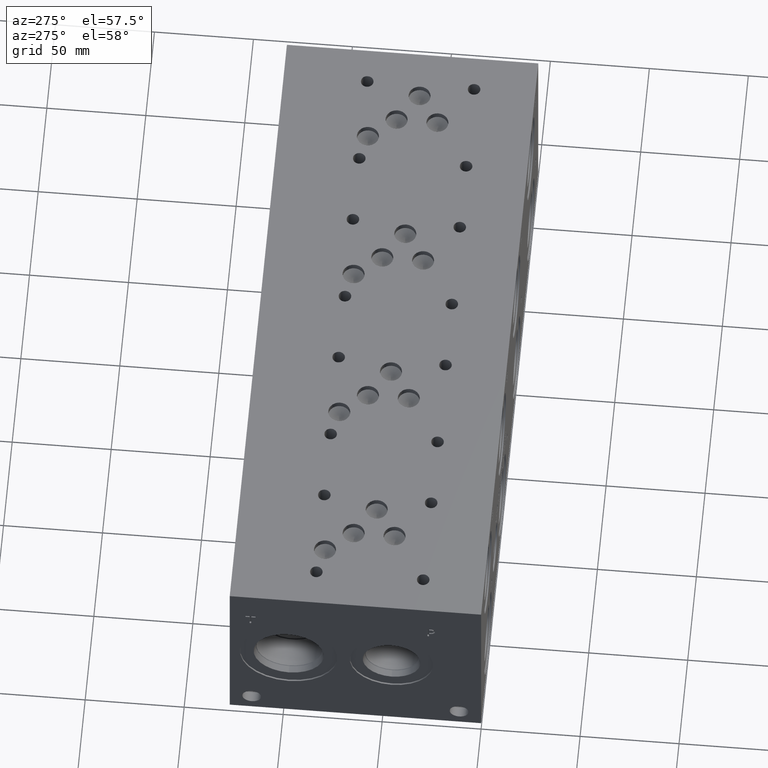
[diagram: clean part render]
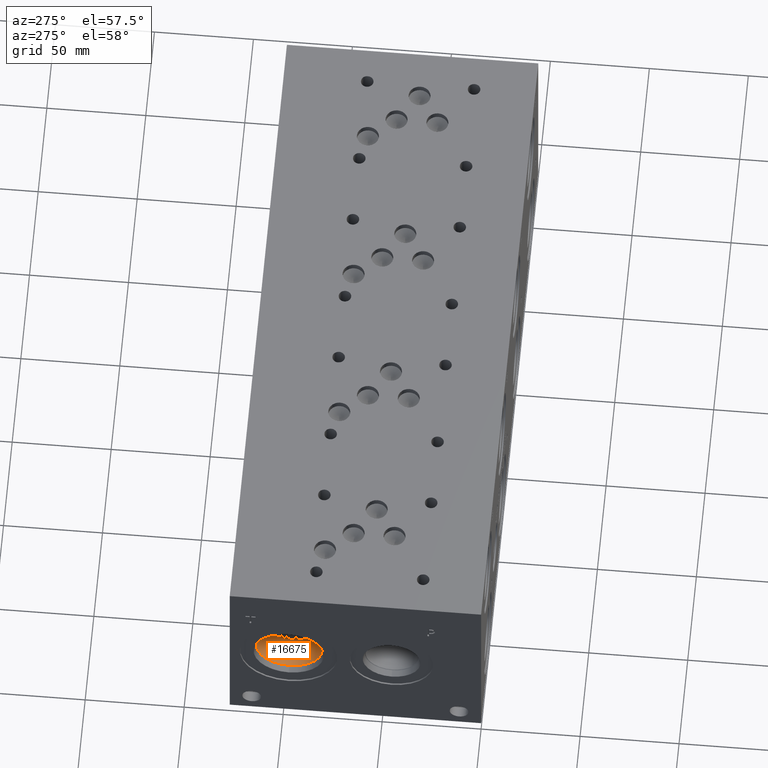
[diagram: same view with one face highlighted and labeled with its STEP entity id]
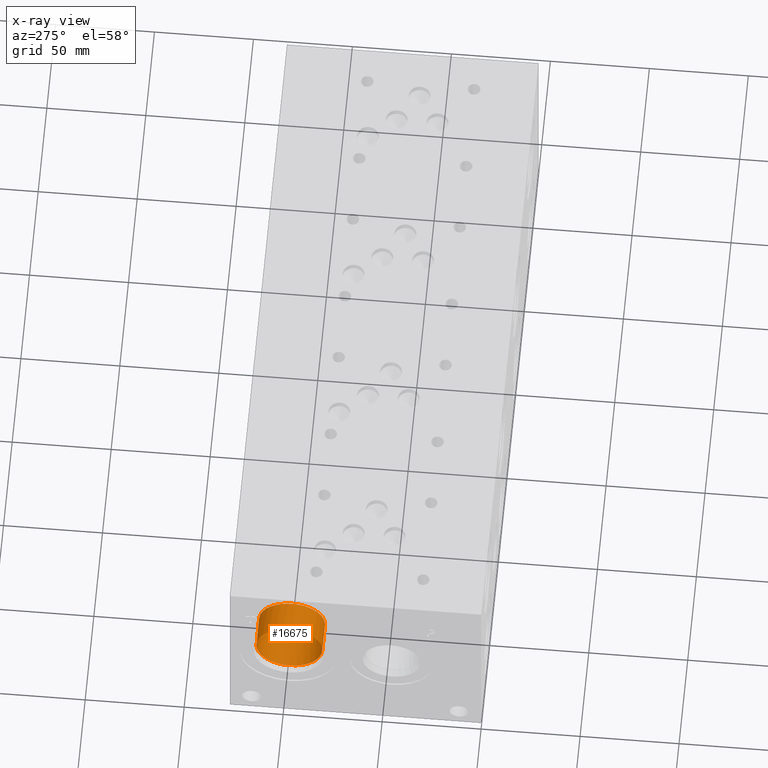
[diagram: x-ray of the same camera — body ghosted, the highlighted face saturated]
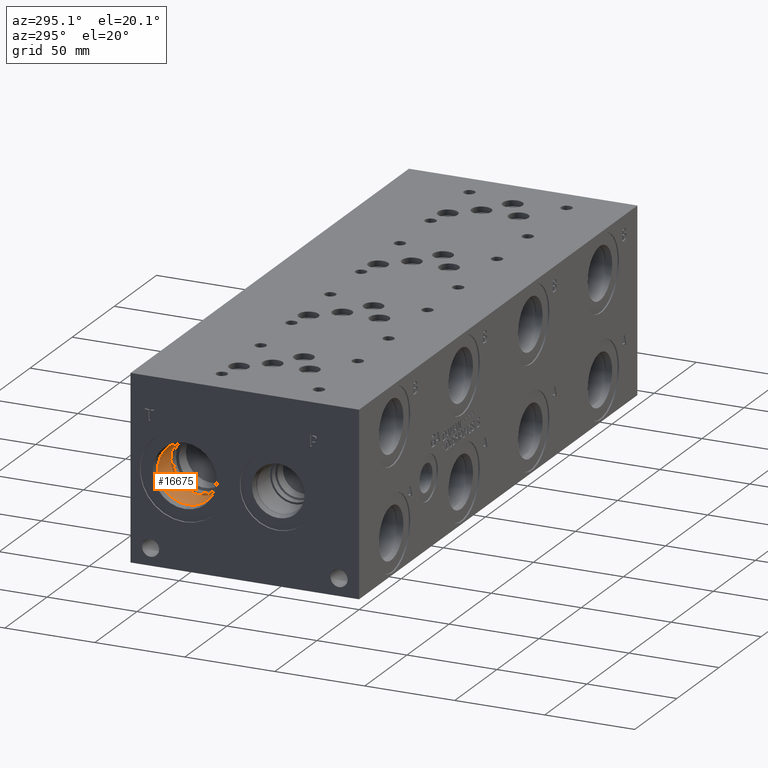
[diagram: same view with one face highlighted and labeled with its STEP entity id]
A machine part, auxiliary view. The second image highlights one B-rep face of the part: STEP entity #16675.
The next image is the same camera in x-ray: the body ghosted, the highlighted face saturated — about 0% of this face is hidden behind the body in this view.
A second angle (auxiliary view) of the same face is appended — the face is thin or edge-on in the first view.
In plain terms, the highlighted cylindrical surface (bore or boss wall) has radius 16.67 mm, axis along (-1, 0, 0).
Its self-contained STEP definition (entity closure, byte-faithful):
#156=CYLINDRICAL_SURFACE('',#17583,16.67);
#647=CIRCLE('',#17580,16.67);
#648=CIRCLE('',#17581,16.67);
#650=CIRCLE('',#17584,16.67);
#651=CIRCLE('',#17585,16.67);
#2181=FACE_OUTER_BOUND('',#3155,.T.);
#3155=EDGE_LOOP('',(#14078,#14079,#14080,#14081,#14082,#14083));
#4704=LINE('',#28338,#6162);
#6162=VECTOR('',#20800,16.67);
#7609=VERTEX_POINT('',#28328);
#7610=VERTEX_POINT('',#28329);
#7612=VERTEX_POINT('',#28335);
#7613=VERTEX_POINT('',#28336);
#9851=EDGE_CURVE('',#7609,#7610,#647,.T.);
#9852=EDGE_CURVE('',#7610,#7609,#648,.T.);
#9854=EDGE_CURVE('',#7612,#7613,#650,.T.);
#9855=EDGE_CURVE('',#7612,#7610,#4704,.T.);
#9856=EDGE_CURVE('',#7613,#7612,#651,.T.);
#14078=ORIENTED_EDGE('',*,*,#9854,.F.);
#14079=ORIENTED_EDGE('',*,*,#9855,.T.);
#14080=ORIENTED_EDGE('',*,*,#9851,.F.);
#14081=ORIENTED_EDGE('',*,*,#9852,.F.);
#14082=ORIENTED_EDGE('',*,*,#9855,.F.);
#14083=ORIENTED_EDGE('',*,*,#9856,.F.);
#16675=ADVANCED_FACE('',(#2181),#156,.F.);
#17580=AXIS2_PLACEMENT_3D('',#28330,#20790,#20791);
#17581=AXIS2_PLACEMENT_3D('',#28331,#20792,#20793);
#17583=AXIS2_PLACEMENT_3D('',#28334,#20796,#20797);
#17584=AXIS2_PLACEMENT_3D('',#28337,#20798,#20799);
#17585=AXIS2_PLACEMENT_3D('',#28339,#20801,#20802);
#20790=DIRECTION('center_axis',(-1.,0.,0.));
#20791=DIRECTION('ref_axis',(0.,1.,0.));
#20792=DIRECTION('center_axis',(-1.,0.,0.));
#20793=DIRECTION('ref_axis',(0.,1.,0.));
#20796=DIRECTION('center_axis',(-1.,0.,0.));
#20797=DIRECTION('ref_axis',(0.,1.,0.));
#20798=DIRECTION('center_axis',(1.,0.,0.));
#20799=DIRECTION('ref_axis',(0.,1.,0.));
#20800=DIRECTION('',(1.,0.,0.));
#20801=DIRECTION('center_axis',(1.,0.,0.));
#20802=DIRECTION('ref_axis',(0.,1.,0.));
#28328=CARTESIAN_POINT('',(19.8374,113.9266,50.8));
#28329=CARTESIAN_POINT('',(19.8374,80.5866,50.8));
#28330=CARTESIAN_POINT('Origin',(19.8374,97.2566,50.8));
#28331=CARTESIAN_POINT('Origin',(19.8374,97.2566,50.8));
#28334=CARTESIAN_POINT('Origin',(9.9187,97.2566,50.8));
#28335=CARTESIAN_POINT('',(4.2723,80.5866,50.8));
#28336=CARTESIAN_POINT('',(4.2723,97.2566,34.13));
#28337=CARTESIAN_POINT('Origin',(4.2723,97.2566,50.8));
#28338=CARTESIAN_POINT('',(9.9187,80.5866,50.8));
#28339=CARTESIAN_POINT('Origin',(4.2723,97.2566,50.8));